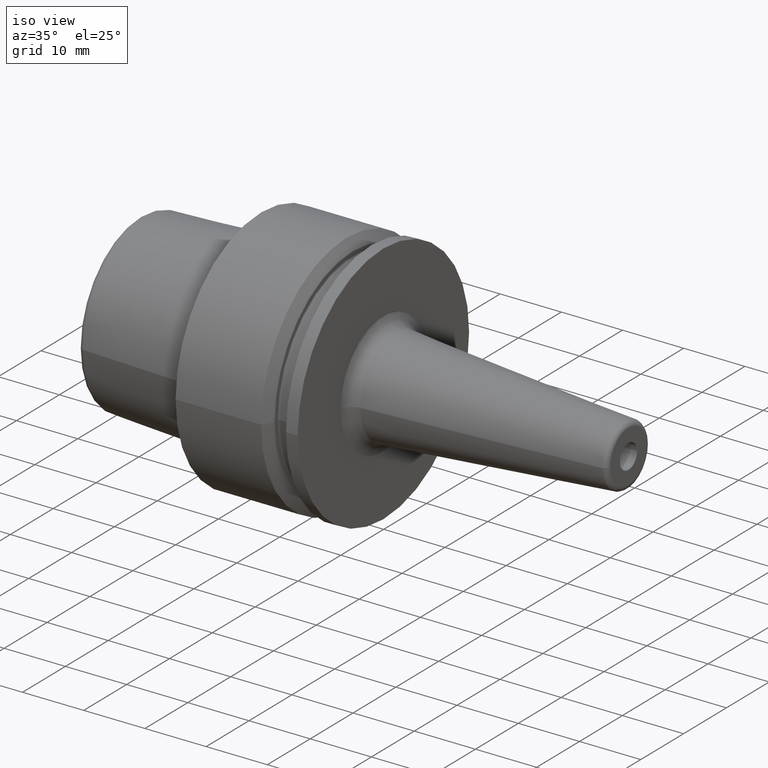
[diagram: clean part render]
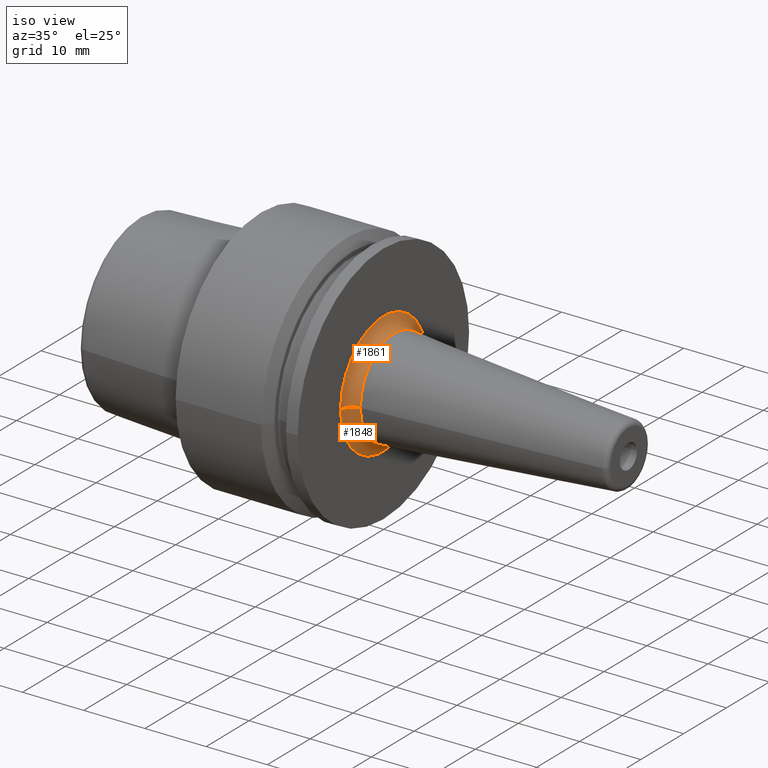
[diagram: same view with one multi-face feature highlighted, each face labeled with its STEP entity id]
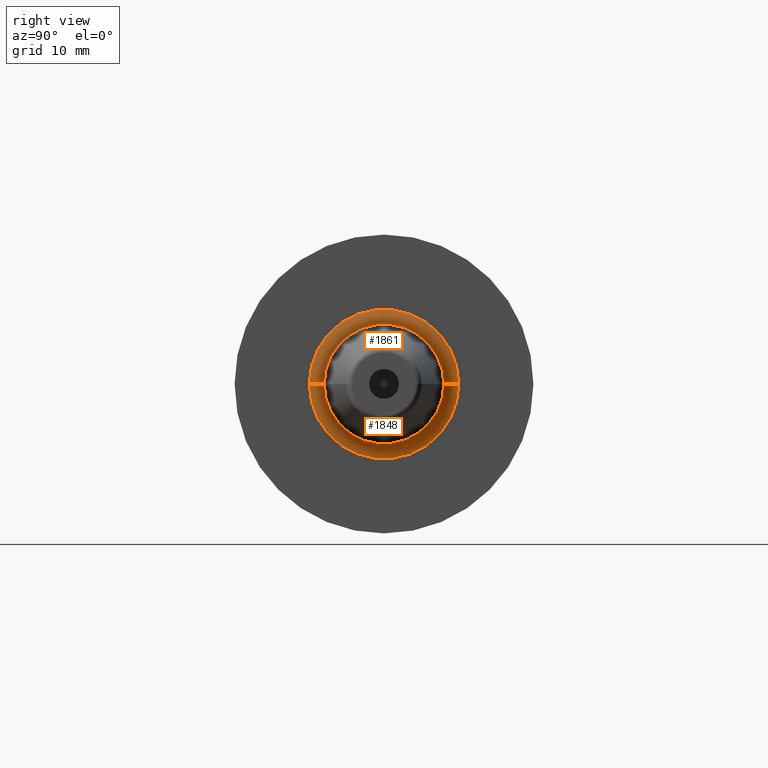
[diagram: same view with one multi-face feature highlighted, each face labeled with its STEP entity id]
A machine part, iso view. The highlighted faces form ONE feature: a constant-radius fillet chain: 2 tangent blend faces with common blend radius 2 mm. The faces share edges in the B-rep.
A second angle (right view) of the same feature is appended — it is thin or edge-on in the first view.
Their STEP definitions:
[1] entity #1848 (Torus):
#622=CARTESIAN_POINT('',(1.995E1,0.E0,0.E0));
#623=DIRECTION('',(1.E0,0.E0,0.E0));
#624=DIRECTION('',(0.E0,-1.E0,0.E0));
#625=AXIS2_PLACEMENT_3D('',#622,#623,#624);
#632=CARTESIAN_POINT('',(2.195E1,-1.000078434164E1,1.156574835903E-12));
#633=DIRECTION('',(0.E0,-1.156488099729E-13,-1.E0));
#634=DIRECTION('',(-1.E0,7.549516567451E-14,0.E0));
#635=AXIS2_PLACEMENT_3D('',#632,#633,#634);
#637=CARTESIAN_POINT('',(2.195E1,1.000078434164E1,-1.157823836806E-12));
#638=DIRECTION('',(0.E0,1.157737100632E-13,1.E0));
#639=DIRECTION('',(-1.E0,-7.549516567451E-14,0.E0));
#640=AXIS2_PLACEMENT_3D('',#637,#638,#639);
#671=CARTESIAN_POINT('',(2.179308180854E1,0.E0,0.E0));
#672=DIRECTION('',(1.E0,0.E0,0.E0));
#673=DIRECTION('',(0.E0,-1.E0,0.E0));
#674=AXIS2_PLACEMENT_3D('',#671,#672,#673);
#862=CARTESIAN_POINT('',(1.995E1,-1.000078434164E1,0.E0));
#863=CARTESIAN_POINT('',(1.995E1,1.000078434164E1,0.E0));
#864=VERTEX_POINT('',#862);
#865=VERTEX_POINT('',#863);
#866=CARTESIAN_POINT('',(2.179308180854E1,-8.006949674176E0,0.E0));
#867=CARTESIAN_POINT('',(2.179308180854E1,8.006949674176E0,0.E0));
#868=VERTEX_POINT('',#866);
#869=VERTEX_POINT('',#867);
#1834=CARTESIAN_POINT('',(2.195E1,0.E0,0.E0));
#1835=DIRECTION('',(1.E0,0.E0,0.E0));
#1836=DIRECTION('',(0.E0,-9.999316539899E-1,1.169133649465E-2));
#1837=AXIS2_PLACEMENT_3D('',#1834,#1835,#1836);
#1838=TOROIDAL_SURFACE('',#1837,1.000078434164E1,2.E0);
#1839=ORIENTED_EDGE('',*,*,#1827,.F.);
#1841=ORIENTED_EDGE('',*,*,#1840,.T.);
#1843=ORIENTED_EDGE('',*,*,#1842,.T.);
#1845=ORIENTED_EDGE('',*,*,#1844,.F.);
#1846=EDGE_LOOP('',(#1839,#1841,#1843,#1845));
#1847=FACE_OUTER_BOUND('',#1846,.F.);
#1848=ADVANCED_FACE('',(#1847),#1838,.F.);
#626=CIRCLE('',#625,1.000078434164E1);
#636=CIRCLE('',#635,2.E0);
#641=CIRCLE('',#640,2.E0);
#675=CIRCLE('',#674,8.006949674176E0);
#1827=EDGE_CURVE('',#864,#865,#626,.T.);
#1840=EDGE_CURVE('',#864,#868,#636,.T.);
#1842=EDGE_CURVE('',#868,#869,#675,.T.);
#1844=EDGE_CURVE('',#865,#869,#641,.T.);
[2] entity #1861 (Torus):
#627=CARTESIAN_POINT('',(1.995E1,0.E0,0.E0));
#628=DIRECTION('',(1.E0,0.E0,0.E0));
#629=DIRECTION('',(0.E0,1.E0,0.E0));
#630=AXIS2_PLACEMENT_3D('',#627,#628,#629);
#632=CARTESIAN_POINT('',(2.195E1,-1.000078434164E1,1.156574835903E-12));
#633=DIRECTION('',(0.E0,-1.156488099729E-13,-1.E0));
#634=DIRECTION('',(-1.E0,7.549516567451E-14,0.E0));
#635=AXIS2_PLACEMENT_3D('',#632,#633,#634);
#637=CARTESIAN_POINT('',(2.195E1,1.000078434164E1,-1.157823836806E-12));
#638=DIRECTION('',(0.E0,1.157737100632E-13,1.E0));
#639=DIRECTION('',(-1.E0,-7.549516567451E-14,0.E0));
#640=AXIS2_PLACEMENT_3D('',#637,#638,#639);
#647=CARTESIAN_POINT('',(2.179308180854E1,0.E0,0.E0));
#648=DIRECTION('',(1.E0,0.E0,0.E0));
#649=DIRECTION('',(0.E0,1.E0,0.E0));
#650=AXIS2_PLACEMENT_3D('',#647,#648,#649);
#862=CARTESIAN_POINT('',(1.995E1,-1.000078434164E1,0.E0));
#863=CARTESIAN_POINT('',(1.995E1,1.000078434164E1,0.E0));
#864=VERTEX_POINT('',#862);
#865=VERTEX_POINT('',#863);
#866=CARTESIAN_POINT('',(2.179308180854E1,-8.006949674176E0,0.E0));
#867=CARTESIAN_POINT('',(2.179308180854E1,8.006949674176E0,0.E0));
#868=VERTEX_POINT('',#866);
#869=VERTEX_POINT('',#867);
#1849=CARTESIAN_POINT('',(2.195E1,0.E0,0.E0));
#1850=DIRECTION('',(1.E0,0.E0,0.E0));
#1851=DIRECTION('',(0.E0,9.999316539899E-1,-1.169133649465E-2));
#1852=AXIS2_PLACEMENT_3D('',#1849,#1850,#1851);
#1853=TOROIDAL_SURFACE('',#1852,1.000078434164E1,2.E0);
#1854=ORIENTED_EDGE('',*,*,#1829,.F.);
#1855=ORIENTED_EDGE('',*,*,#1844,.T.);
#1857=ORIENTED_EDGE('',*,*,#1856,.T.);
#1858=ORIENTED_EDGE('',*,*,#1840,.F.);
#1859=EDGE_LOOP('',(#1854,#1855,#1857,#1858));
#1860=FACE_OUTER_BOUND('',#1859,.F.);
#1861=ADVANCED_FACE('',(#1860),#1853,.F.);
#631=CIRCLE('',#630,1.000078434164E1);
#636=CIRCLE('',#635,2.E0);
#641=CIRCLE('',#640,2.E0);
#651=CIRCLE('',#650,8.006949674176E0);
#1829=EDGE_CURVE('',#865,#864,#631,.T.);
#1840=EDGE_CURVE('',#864,#868,#636,.T.);
#1844=EDGE_CURVE('',#865,#869,#641,.T.);
#1856=EDGE_CURVE('',#869,#868,#651,.T.);